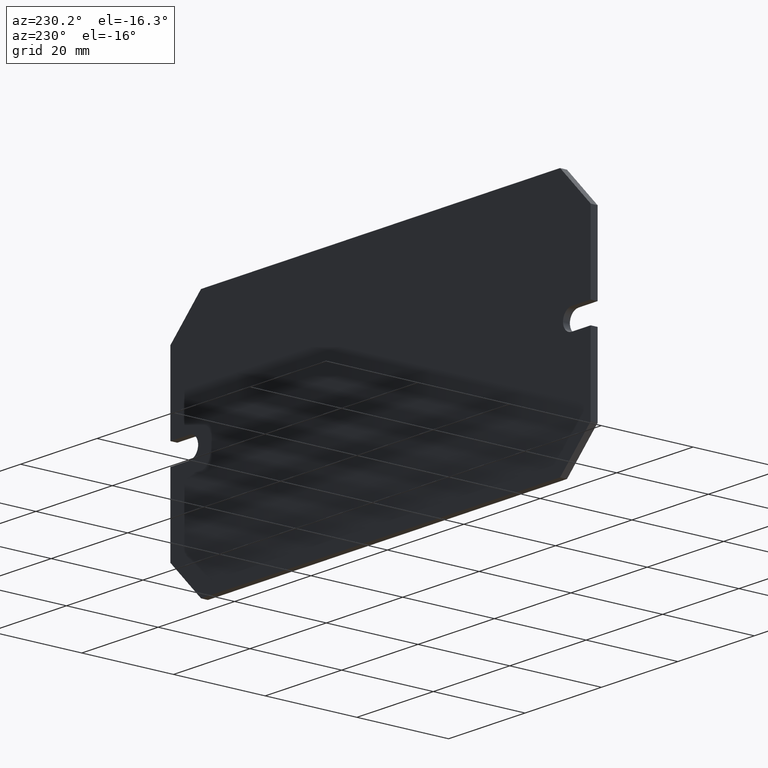
[diagram: clean part render]
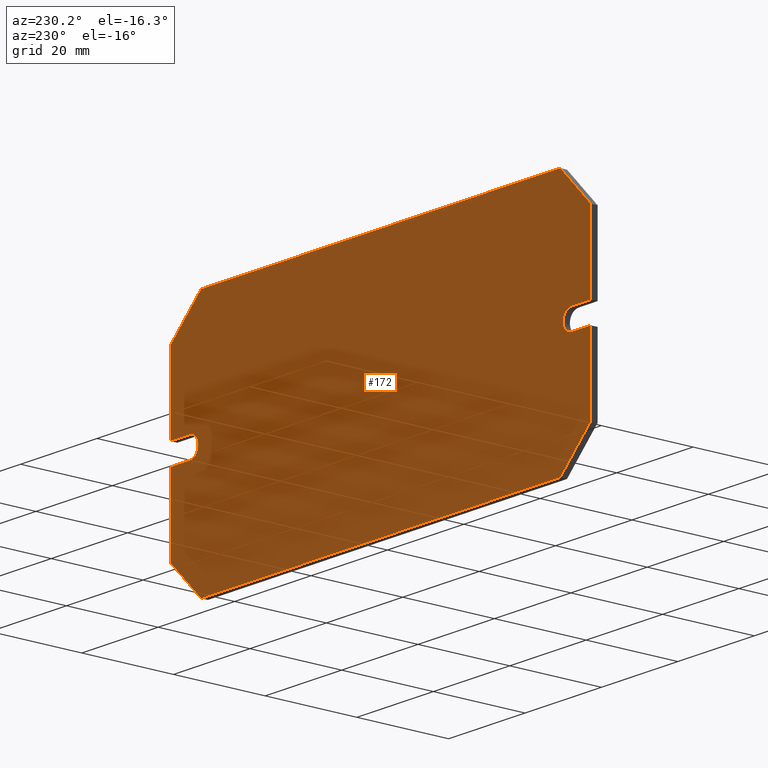
[diagram: same view with one face highlighted and labeled with its STEP entity id]
A machine part, auxiliary view. The second image highlights one B-rep face of the part: STEP entity #172.
In plain terms, the highlighted planar face has unit normal (0, 1, 0).
Its self-contained STEP definition (entity closure, byte-faithful):
#18 = EDGE_CURVE ( 'NONE', #41, #33, #374, .T. ) ;
#19 = EDGE_CURVE ( 'NONE', #33, #26, #338, .T. ) ;
#26 = VERTEX_POINT ( 'NONE', #330 ) ;
#33 = VERTEX_POINT ( 'NONE', #384 ) ;
#41 = VERTEX_POINT ( 'NONE', #367 ) ;
#43 = EDGE_CURVE ( 'NONE', #64, #41, #362, .T. ) ;
#57 = VERTEX_POINT ( 'NONE', #266 ) ;
#59 = VERTEX_POINT ( 'NONE', #264 ) ;
#64 = VERTEX_POINT ( 'NONE', #282 ) ;
#69 = EDGE_CURVE ( 'NONE', #59, #64, #297, .T. ) ;
#74 = EDGE_CURVE ( 'NONE', #57, #59, #316, .T. ) ;
#77 = VERTEX_POINT ( 'NONE', #490 ) ;
#78 = EDGE_CURVE ( 'NONE', #26, #90, #493, .T. ) ;
#88 = EDGE_CURVE ( 'NONE', #130, #117, #506, .T. ) ;
#90 = VERTEX_POINT ( 'NONE', #513 ) ;
#100 = VERTEX_POINT ( 'NONE', #521 ) ;
#114 = EDGE_CURVE ( 'NONE', #90, #100, #550, .T. ) ;
#117 = VERTEX_POINT ( 'NONE', #591 ) ;
#120 = EDGE_CURVE ( 'NONE', #100, #130, #600, .T. ) ;
#128 = EDGE_CURVE ( 'NONE', #117, #77, #580, .T. ) ;
#130 = VERTEX_POINT ( 'NONE', #576 ) ;
#133 = EDGE_CURVE ( 'NONE', #158, #138, #575, .T. ) ;
#138 = VERTEX_POINT ( 'NONE', #558 ) ;
#141 = VERTEX_POINT ( 'NONE', #209 ) ;
#149 = EDGE_CURVE ( 'NONE', #141, #150, #234, .T. ) ;
#150 = VERTEX_POINT ( 'NONE', #235 ) ;
#158 = VERTEX_POINT ( 'NONE', #226 ) ;
#164 = EDGE_CURVE ( 'NONE', #77, #158, #416, .T. ) ;
#170 = ORIENTED_EDGE ( 'NONE', *, *, #69, .T. ) ;
#172 = ADVANCED_FACE ( 'NONE', ( #412 ), #410, .T. ) ;
#173 = ORIENTED_EDGE ( 'NONE', *, *, #128, .T. ) ;
#174 = ORIENTED_EDGE ( 'NONE', *, *, #19, .T. ) ;
#176 = ORIENTED_EDGE ( 'NONE', *, *, #74, .T. ) ;
#177 = ORIENTED_EDGE ( 'NONE', *, *, #149, .T. ) ;
#178 = ORIENTED_EDGE ( 'NONE', *, *, #203, .T. ) ;
#179 = ORIENTED_EDGE ( 'NONE', *, *, #185, .T. ) ;
#182 = ORIENTED_EDGE ( 'NONE', *, *, #18, .T. ) ;
#184 = ORIENTED_EDGE ( 'NONE', *, *, #223, .T. ) ;
#185 = EDGE_CURVE ( 'NONE', #199, #57, #396, .T. ) ;
#186 = EDGE_LOOP ( 'NONE', ( #176, #170, #188, #182, #174, #187, #193, #190, #191, #173, #194, #189, #184, #177, #178, #179 ) ) ;
#187 = ORIENTED_EDGE ( 'NONE', *, *, #78, .T. ) ;
#188 = ORIENTED_EDGE ( 'NONE', *, *, #43, .T. ) ;
#189 = ORIENTED_EDGE ( 'NONE', *, *, #133, .T. ) ;
#190 = ORIENTED_EDGE ( 'NONE', *, *, #120, .T. ) ;
#191 = ORIENTED_EDGE ( 'NONE', *, *, #88, .T. ) ;
#193 = ORIENTED_EDGE ( 'NONE', *, *, #114, .T. ) ;
#194 = ORIENTED_EDGE ( 'NONE', *, *, #164, .T. ) ;
#199 = VERTEX_POINT ( 'NONE', #387 ) ;
#203 = EDGE_CURVE ( 'NONE', #150, #199, #447, .T. ) ;
#209 = CARTESIAN_POINT ( 'NONE',  ( -55.00000000000000000, 1.500000000000000000, -2.249999999999981300 ) ) ;
#223 = EDGE_CURVE ( 'NONE', #138, #141, #420, .T. ) ;
#226 = CARTESIAN_POINT ( 'NONE',  ( -46.99999999999997900, 1.500000000000000000, -26.99999999999997900 ) ) ;
#231 = DIRECTION ( 'NONE',  ( 1.000000000000000000, 0.0000000000000000000, 0.0000000000000000000 ) ) ;
#232 = VECTOR ( 'NONE', #231, 1000.000000000000000 ) ;
#233 = CARTESIAN_POINT ( 'NONE',  ( -55.00000000000000000, 1.500000000000000000, -2.249999999999981300 ) ) ;
#234 = LINE ( 'NONE', #233, #232 ) ;
#235 = CARTESIAN_POINT ( 'NONE',  ( -49.99999999999999300, 1.500000000000000000, -2.249999999999975600 ) ) ;
#259 = DIRECTION ( 'NONE',  ( -1.000000000000000000, 0.0000000000000000000, 2.602085213965208700E-016 ) ) ;
#264 = CARTESIAN_POINT ( 'NONE',  ( -55.00000000000000000, 1.500000000000000000, 18.99999999999998200 ) ) ;
#266 = CARTESIAN_POINT ( 'NONE',  ( -55.00000000000000000, 1.500000000000000000, 2.249999999999981300 ) ) ;
#282 = CARTESIAN_POINT ( 'NONE',  ( -46.99999999999997900, 1.500000000000000000, 26.99999999999997900 ) ) ;
#290 = DIRECTION ( 'NONE',  ( 0.7071067811865486800, 0.0000000000000000000, 0.7071067811865464600 ) ) ;
#291 = VECTOR ( 'NONE', #290, 999.9999999999998900 ) ;
#292 = CARTESIAN_POINT ( 'NONE',  ( -55.00000000000000000, 1.500000000000000000, 18.99999999999998200 ) ) ;
#297 = LINE ( 'NONE', #292, #291 ) ;
#315 = CARTESIAN_POINT ( 'NONE',  ( -55.00000000000000000, 1.500000000000000000, 2.249999999999981300 ) ) ;
#316 = LINE ( 'NONE', #315, #321 ) ;
#320 = DIRECTION ( 'NONE',  ( 0.0000000000000000000, 0.0000000000000000000, 1.000000000000000000 ) ) ;
#321 = VECTOR ( 'NONE', #320, 1000.000000000000000 ) ;
#330 = CARTESIAN_POINT ( 'NONE',  ( 55.00000000000001400, 1.500000000000000000, 2.249999999999967600 ) ) ;
#335 = DIRECTION ( 'NONE',  ( 8.285246452426526800E-016, -0.0000000000000000000, -1.000000000000000000 ) ) ;
#336 = VECTOR ( 'NONE', #335, 1000.000000000000000 ) ;
#337 = CARTESIAN_POINT ( 'NONE',  ( 55.00000000000001400, 1.500000000000000000, 2.249999999999967600 ) ) ;
#338 = LINE ( 'NONE', #337, #336 ) ;
#359 = DIRECTION ( 'NONE',  ( 1.000000000000000000, 0.0000000000000000000, 1.107270303814983800E-016 ) ) ;
#360 = VECTOR ( 'NONE', #359, 1000.000000000000000 ) ;
#361 = CARTESIAN_POINT ( 'NONE',  ( -46.99999999999997900, 1.500000000000000000, 26.99999999999997900 ) ) ;
#362 = LINE ( 'NONE', #361, #360 ) ;
#367 = CARTESIAN_POINT ( 'NONE',  ( 46.99999999999997900, 1.500000000000000000, 26.99999999999998900 ) ) ;
#371 = DIRECTION ( 'NONE',  ( 0.7071067811865487900, -0.0000000000000000000, -0.7071067811865463500 ) ) ;
#372 = VECTOR ( 'NONE', #371, 1000.000000000000000 ) ;
#373 = CARTESIAN_POINT ( 'NONE',  ( 55.00000000000000000, 1.500000000000000000, 18.99999999999999600 ) ) ;
#374 = LINE ( 'NONE', #373, #372 ) ;
#384 = CARTESIAN_POINT ( 'NONE',  ( 55.00000000000000000, 1.500000000000000000, 18.99999999999999600 ) ) ;
#387 = CARTESIAN_POINT ( 'NONE',  ( -49.99999999999999300, 1.500000000000000000, 2.249999999999981300 ) ) ;
#393 = DIRECTION ( 'NONE',  ( -1.000000000000000000, -0.0000000000000000000, -0.0000000000000000000 ) ) ;
#394 = VECTOR ( 'NONE', #393, 1000.000000000000000 ) ;
#395 = CARTESIAN_POINT ( 'NONE',  ( -55.00000000000000000, 1.500000000000000000, 2.249999999999981300 ) ) ;
#396 = LINE ( 'NONE', #395, #394 ) ;
#406 = DIRECTION ( 'NONE',  ( 0.0000000000000000000, -0.0000000000000000000, 1.000000000000000000 ) ) ;
#407 = DIRECTION ( 'NONE',  ( 0.0000000000000000000, 1.000000000000000000, 0.0000000000000000000 ) ) ;
#408 = CARTESIAN_POINT ( 'NONE',  ( 49.99999999999997900, 1.500000000000000000, 5.422833677330016600E-015 ) ) ;
#409 = AXIS2_PLACEMENT_3D ( 'NONE', #408, #407, #406 ) ;
#410 = PLANE ( 'NONE',  #409 ) ;
#412 = FACE_OUTER_BOUND ( 'NONE', #186, .T. ) ;
#413 = DIRECTION ( 'NONE',  ( -1.000000000000000000, -0.0000000000000000000, 1.107270303814983800E-016 ) ) ;
#414 = VECTOR ( 'NONE', #413, 1000.000000000000000 ) ;
#415 = CARTESIAN_POINT ( 'NONE',  ( -46.99999999999997900, 1.500000000000000000, -26.99999999999997900 ) ) ;
#416 = LINE ( 'NONE', #415, #414 ) ;
#417 = DIRECTION ( 'NONE',  ( -0.0000000000000000000, -0.0000000000000000000, 1.000000000000000000 ) ) ;
#418 = VECTOR ( 'NONE', #417, 1000.000000000000000 ) ;
#419 = CARTESIAN_POINT ( 'NONE',  ( -55.00000000000000000, 1.500000000000000000, -2.249999999999981300 ) ) ;
#420 = LINE ( 'NONE', #419, #418 ) ;
#443 = DIRECTION ( 'NONE',  ( 0.0000000000000000000, 0.0000000000000000000, -1.000000000000000000 ) ) ;
#444 = DIRECTION ( 'NONE',  ( 0.0000000000000000000, -1.000000000000000000, 0.0000000000000000000 ) ) ;
#445 = CARTESIAN_POINT ( 'NONE',  ( -49.99999999999999300, 1.500000000000000000, 1.766889721555378600E-014 ) ) ;
#446 = AXIS2_PLACEMENT_3D ( 'NONE', #445, #444, #443 ) ;
#447 = CIRCLE ( 'NONE', #446, 2.249999999999993300 ) ;
#490 = CARTESIAN_POINT ( 'NONE',  ( 46.99999999999997900, 1.500000000000000000, -26.99999999999998900 ) ) ;
#491 = VECTOR ( 'NONE', #259, 1000.000000000000000 ) ;
#492 = CARTESIAN_POINT ( 'NONE',  ( 55.00000000000001400, 1.500000000000000000, 2.249999999999967600 ) ) ;
#493 = LINE ( 'NONE', #492, #491 ) ;
#505 = VECTOR ( 'NONE', #522, 1000.000000000000000 ) ;
#506 = LINE ( 'NONE', #507, #505 ) ;
#507 = CARTESIAN_POINT ( 'NONE',  ( 55.00000000000001400, 1.500000000000000000, -2.249999999999967600 ) ) ;
#513 = CARTESIAN_POINT ( 'NONE',  ( 50.00000000000000700, 1.500000000000000000, 2.249999999999974700 ) ) ;
#521 = CARTESIAN_POINT ( 'NONE',  ( 50.00000000000000700, 1.500000000000000000, -2.249999999999968900 ) ) ;
#522 = DIRECTION ( 'NONE',  ( -8.285246452426526800E-016, 0.0000000000000000000, -1.000000000000000000 ) ) ;
#547 = DIRECTION ( 'NONE',  ( 0.0000000000000000000, 0.0000000000000000000, 1.000000000000000000 ) ) ;
#548 = DIRECTION ( 'NONE',  ( -0.0000000000000000000, -1.000000000000000000, -0.0000000000000000000 ) ) ;
#549 = CARTESIAN_POINT ( 'NONE',  ( 49.99999999999997900, 1.500000000000000000, 5.422833677330016600E-015 ) ) ;
#550 = CIRCLE ( 'NONE', #551, 2.249999999999968900 ) ;
#551 = AXIS2_PLACEMENT_3D ( 'NONE', #549, #548, #547 ) ;
#558 = CARTESIAN_POINT ( 'NONE',  ( -55.00000000000000000, 1.500000000000000000, -18.99999999999998200 ) ) ;
#572 = DIRECTION ( 'NONE',  ( -0.7071067811865486800, -0.0000000000000000000, 0.7071067811865464600 ) ) ;
#573 = VECTOR ( 'NONE', #572, 999.9999999999998900 ) ;
#574 = CARTESIAN_POINT ( 'NONE',  ( -55.00000000000000000, 1.500000000000000000, -18.99999999999998200 ) ) ;
#575 = LINE ( 'NONE', #574, #573 ) ;
#576 = CARTESIAN_POINT ( 'NONE',  ( 55.00000000000001400, 1.500000000000000000, -2.249999999999967600 ) ) ;
#577 = DIRECTION ( 'NONE',  ( -0.7071067811865487900, 0.0000000000000000000, -0.7071067811865463500 ) ) ;
#578 = VECTOR ( 'NONE', #577, 1000.000000000000000 ) ;
#579 = CARTESIAN_POINT ( 'NONE',  ( 55.00000000000000000, 1.500000000000000000, -18.99999999999999600 ) ) ;
#580 = LINE ( 'NONE', #579, #578 ) ;
#591 = CARTESIAN_POINT ( 'NONE',  ( 55.00000000000000000, 1.500000000000000000, -18.99999999999999600 ) ) ;
#597 = DIRECTION ( 'NONE',  ( 1.000000000000000000, -0.0000000000000000000, 2.602085213965208700E-016 ) ) ;
#598 = VECTOR ( 'NONE', #597, 1000.000000000000000 ) ;
#599 = CARTESIAN_POINT ( 'NONE',  ( 55.00000000000001400, 1.500000000000000000, -2.249999999999967600 ) ) ;
#600 = LINE ( 'NONE', #599, #598 ) ;